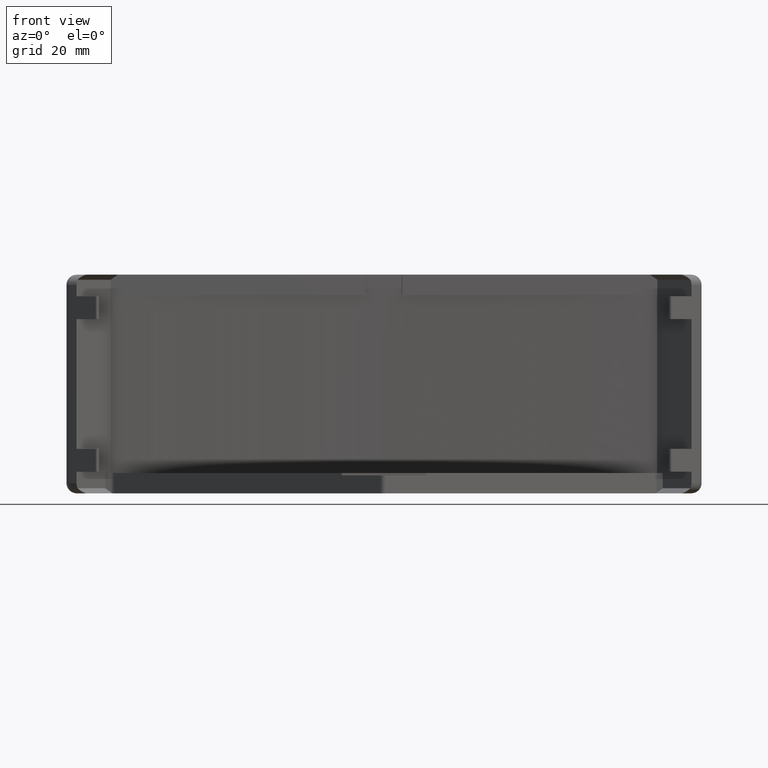
[diagram: clean part render]
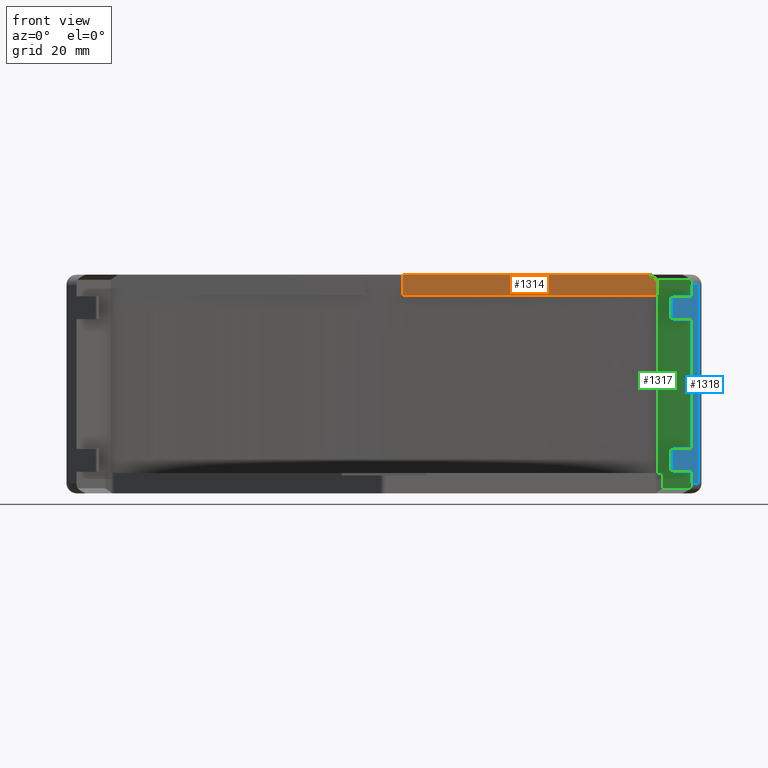
[diagram: same view with three faces highlighted in distinct colors, each labeled with its STEP entity id]
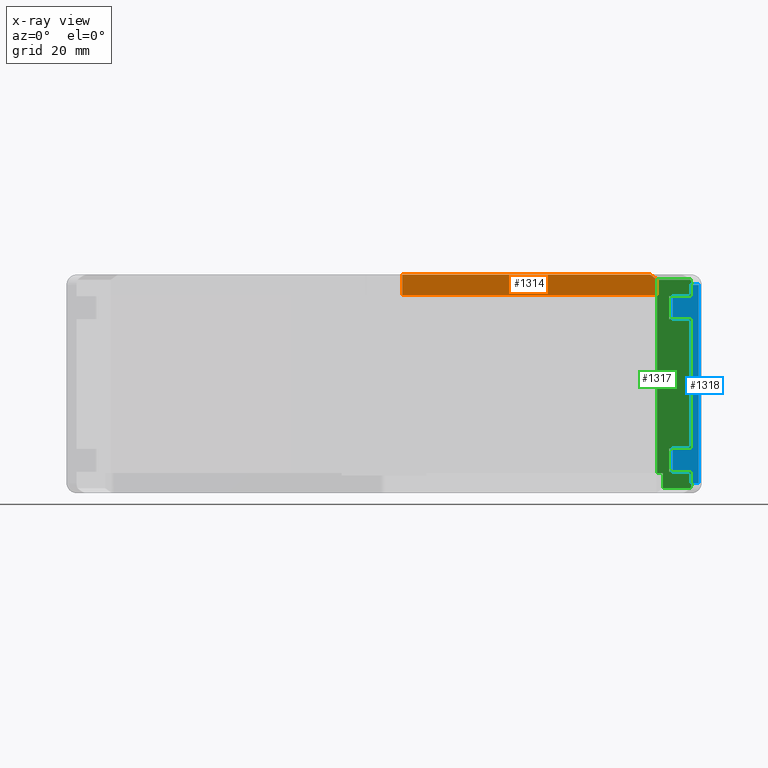
[diagram: x-ray of the same camera — body ghosted, the three highlighted faces saturated]
A machine part, front view with three faces highlighted in distinct colors.
The next image is the same camera in x-ray (body ghosted, the three faces saturated) — at least one of them is partly hidden behind the body in this view.
Their STEP definitions:

[orange] entity #1314 — the highlighted planar face has unit normal (0, -1, 0).
#52=PLANE('',#1437);
#95=LINE('',#1980,#234);
#166=LINE('',#2152,#305);
#167=LINE('',#2154,#306);
#168=LINE('',#2156,#307);
#169=LINE('',#2157,#308);
#234=VECTOR('',#1569,1000.);
#305=VECTOR('',#1726,1000.);
#306=VECTOR('',#1727,1000.);
#307=VECTOR('',#1728,1000.);
#308=VECTOR('',#1729,1000.);
#403=FACE_OUTER_BOUND('',#478,.T.);
#478=EDGE_LOOP('',(#1075,#1076,#1077,#1078,#1079));
#598=VERTEX_POINT('',#1964);
#605=VERTEX_POINT('',#1978);
#663=VERTEX_POINT('',#2151);
#664=VERTEX_POINT('',#2153);
#665=VERTEX_POINT('',#2155);
#731=EDGE_CURVE('',#605,#598,#95,.T.);
#817=EDGE_CURVE('',#605,#663,#166,.T.);
#818=EDGE_CURVE('',#664,#663,#167,.T.);
#819=EDGE_CURVE('',#665,#664,#168,.T.);
#820=EDGE_CURVE('',#598,#665,#169,.T.);
#1075=ORIENTED_EDGE('',*,*,#817,.T.);
#1076=ORIENTED_EDGE('',*,*,#818,.F.);
#1077=ORIENTED_EDGE('',*,*,#819,.F.);
#1078=ORIENTED_EDGE('',*,*,#820,.F.);
#1079=ORIENTED_EDGE('',*,*,#731,.F.);
#1314=ADVANCED_FACE('',(#403),#52,.T.);
#1437=AXIS2_PLACEMENT_3D('',#2150,#1724,#1725);
#1569=DIRECTION('',(1.,1.59349221399015E-14,6.56026351436684E-17));
#1724=DIRECTION('center_axis',(1.59349221399015E-14,-1.,0.));
#1725=DIRECTION('ref_axis',(-1.,-1.59349221399015E-14,0.));
#1726=DIRECTION('',(0.,0.,-1.));
#1727=DIRECTION('',(-1.,-1.59349221399015E-14,0.));
#1728=DIRECTION('',(-3.46944695195363E-14,-5.52993726712584E-28,-1.));
#1729=DIRECTION('',(0.816496580927719,1.3010809444579E-14,-0.577350269189636));
#1964=CARTESIAN_POINT('',(52.8251262658462,1.06066017178044,21.5));
#1978=CARTESIAN_POINT('',(4.08183490205625,1.06066017177966,21.5));
#1980=CARTESIAN_POINT('',(-0.0606601717808113,1.06066017177959,21.5));
#2150=CARTESIAN_POINT('Origin',(-0.0606601717808113,1.06066017177959,0.));
#2151=CARTESIAN_POINT('',(4.08183490205625,1.06066017177966,17.5));
#2152=CARTESIAN_POINT('',(4.08183490205625,1.06066017177966,0.));
#2153=CARTESIAN_POINT('',(54.2393398282193,1.06066017178044,17.5));
#2154=CARTESIAN_POINT('',(54.2393398282192,1.06066017178046,17.5));
#2155=CARTESIAN_POINT('',(54.2393398282193,1.06066017178046,20.5));
#2156=CARTESIAN_POINT('',(54.2393398282193,1.06066017178046,20.5));
#2157=CARTESIAN_POINT('',(52.8251262658462,1.06066017178044,21.5));

[blue] entity #1318 — the highlighted planar face has unit normal (-0.7071, 0.7071, 0).
#56=PLANE('',#1444);
#70=LINE('',#1915,#209);
#177=LINE('',#2177,#316);
#181=LINE('',#2185,#320);
#185=LINE('',#2193,#324);
#188=LINE('',#2199,#327);
#189=LINE('',#2200,#328);
#190=LINE('',#2202,#329);
#191=LINE('',#2204,#330);
#192=LINE('',#2205,#331);
#193=LINE('',#2207,#332);
#194=LINE('',#2209,#333);
#195=LINE('',#2210,#334);
#209=VECTOR('',#1524,1000.);
#316=VECTOR('',#1747,1000.);
#320=VECTOR('',#1751,1000.);
#324=VECTOR('',#1755,1000.);
#327=VECTOR('',#1762,1000.);
#328=VECTOR('',#1763,1000.);
#329=VECTOR('',#1764,1000.);
#330=VECTOR('',#1765,1000.);
#331=VECTOR('',#1766,1000.);
#332=VECTOR('',#1767,1000.);
#333=VECTOR('',#1768,1000.);
#334=VECTOR('',#1769,1000.);
#407=FACE_OUTER_BOUND('',#482,.T.);
#482=EDGE_LOOP('',(#1108,#1109,#1110,#1111,#1112,#1113,#1114,#1115,#1116,
#1117,#1118,#1119));
#571=VERTEX_POINT('',#1901);
#573=VERTEX_POINT('',#1907);
#671=VERTEX_POINT('',#2174);
#672=VERTEX_POINT('',#2176);
#675=VERTEX_POINT('',#2182);
#676=VERTEX_POINT('',#2184);
#679=VERTEX_POINT('',#2190);
#680=VERTEX_POINT('',#2192);
#682=VERTEX_POINT('',#2201);
#683=VERTEX_POINT('',#2203);
#684=VERTEX_POINT('',#2206);
#685=VERTEX_POINT('',#2208);
#699=EDGE_CURVE('',#573,#571,#70,.T.);
#830=EDGE_CURVE('',#672,#671,#177,.T.);
#834=EDGE_CURVE('',#676,#675,#181,.T.);
#838=EDGE_CURVE('',#680,#679,#185,.T.);
#842=EDGE_CURVE('',#671,#573,#188,.T.);
#843=EDGE_CURVE('',#571,#680,#189,.T.);
#844=EDGE_CURVE('',#682,#679,#190,.T.);
#845=EDGE_CURVE('',#683,#682,#191,.T.);
#846=EDGE_CURVE('',#683,#676,#192,.T.);
#847=EDGE_CURVE('',#684,#675,#193,.T.);
#848=EDGE_CURVE('',#685,#684,#194,.T.);
#849=EDGE_CURVE('',#685,#672,#195,.T.);
#1108=ORIENTED_EDGE('',*,*,#830,.T.);
#1109=ORIENTED_EDGE('',*,*,#842,.T.);
#1110=ORIENTED_EDGE('',*,*,#699,.T.);
#1111=ORIENTED_EDGE('',*,*,#843,.T.);
#1112=ORIENTED_EDGE('',*,*,#838,.T.);
#1113=ORIENTED_EDGE('',*,*,#844,.F.);
#1114=ORIENTED_EDGE('',*,*,#845,.F.);
#1115=ORIENTED_EDGE('',*,*,#846,.T.);
#1116=ORIENTED_EDGE('',*,*,#834,.T.);
#1117=ORIENTED_EDGE('',*,*,#847,.F.);
#1118=ORIENTED_EDGE('',*,*,#848,.F.);
#1119=ORIENTED_EDGE('',*,*,#849,.T.);
#1318=ADVANCED_FACE('',(#407),#56,.F.);
#1444=AXIS2_PLACEMENT_3D('',#2198,#1760,#1761);
#1524=DIRECTION('',(0.,0.,1.));
#1747=DIRECTION('',(0.,0.,-1.));
#1751=DIRECTION('',(0.,0.,-1.));
#1755=DIRECTION('',(0.,0.,-1.));
#1760=DIRECTION('center_axis',(-0.707106781186551,0.707106781186544,0.));
#1761=DIRECTION('ref_axis',(0.707106781186544,0.707106781186551,0.));
#1762=DIRECTION('',(0.707106781186544,0.707106781186551,0.));
#1763=DIRECTION('',(-0.707106781186544,-0.707106781186551,0.));
#1764=DIRECTION('',(0.707106781186537,0.707106781186558,0.));
#1765=DIRECTION('',(0.,0.,1.));
#1766=DIRECTION('',(0.707106781186537,0.707106781186558,0.));
#1767=DIRECTION('',(0.707106781186537,0.707106781186558,0.));
#1768=DIRECTION('',(0.,0.,1.));
#1769=DIRECTION('',(0.707106781186537,0.707106781186558,0.));
#1901=CARTESIAN_POINT('',(62.3606601717792,-4.23223304703269,19.5));
#1907=CARTESIAN_POINT('',(62.3606601717792,-4.23223304703269,-19.5));
#1915=CARTESIAN_POINT('',(62.3606601717792,-4.23223304703269,21.5));
#2174=CARTESIAN_POINT('',(60.9464466094061,-5.64644660940575,-19.5));
#2176=CARTESIAN_POINT('',(60.9464466094061,-5.64644660940574,-17.25));
#2177=CARTESIAN_POINT('',(60.9464466094061,-5.64644660940575,21.5));
#2182=CARTESIAN_POINT('',(60.9464466094061,-5.64644660940575,-12.75));
#2184=CARTESIAN_POINT('',(60.9464466094061,-5.64644660940574,12.75));
#2185=CARTESIAN_POINT('',(60.9464466094061,-5.64644660940575,21.5));
#2190=CARTESIAN_POINT('',(60.9464466094061,-5.64644660940575,17.25));
#2192=CARTESIAN_POINT('',(60.9464466094061,-5.64644660940575,19.5));
#2193=CARTESIAN_POINT('',(60.9464466094061,-5.64644660940575,21.5));
#2198=CARTESIAN_POINT('Origin',(60.9464466094061,-5.64644660940577,21.5));
#2199=CARTESIAN_POINT('',(62.3606601717792,-4.23223304703267,-19.5));
#2200=CARTESIAN_POINT('',(60.9464466094061,-5.64644660940577,19.5));
#2201=CARTESIAN_POINT('',(57.2452272785242,-9.34766594028775,17.25));
#2202=CARTESIAN_POINT('',(60.9464466094061,-5.64644660940574,17.25));
#2203=CARTESIAN_POINT('',(57.2452272785242,-9.34766594028775,12.75));
#2204=CARTESIAN_POINT('',(57.2452272785242,-9.34766594028773,17.25));
#2205=CARTESIAN_POINT('',(60.9464466094061,-5.64644660940574,12.75));
#2206=CARTESIAN_POINT('',(57.2452272785242,-9.34766594028775,-12.75));
#2207=CARTESIAN_POINT('',(60.9464466094061,-5.64644660940574,-12.75));
#2208=CARTESIAN_POINT('',(57.2452272785242,-9.34766594028775,-17.25));
#2209=CARTESIAN_POINT('',(57.2452272785242,-9.34766594028773,-12.75));
#2210=CARTESIAN_POINT('',(60.9464466094061,-5.64644660940574,-17.25));

[green] entity #1317 — the highlighted planar face has unit normal (-0.7071, -0.7071, 0).
#55=PLANE('',#1441);
#99=LINE('',#1992,#238);
#168=LINE('',#2156,#307);
#170=LINE('',#2161,#309);
#175=LINE('',#2170,#314);
#176=LINE('',#2173,#315);
#177=LINE('',#2177,#316);
#178=LINE('',#2179,#317);
#179=LINE('',#2181,#318);
#180=LINE('',#2183,#319);
#181=LINE('',#2185,#320);
#182=LINE('',#2187,#321);
#183=LINE('',#2189,#322);
#184=LINE('',#2191,#323);
#185=LINE('',#2193,#324);
#186=LINE('',#2196,#325);
#187=LINE('',#2197,#326);
#238=VECTOR('',#1577,1000.);
#307=VECTOR('',#1728,1000.);
#309=VECTOR('',#1734,1000.);
#314=VECTOR('',#1741,1000.);
#315=VECTOR('',#1744,1000.);
#316=VECTOR('',#1747,1000.);
#317=VECTOR('',#1748,1000.);
#318=VECTOR('',#1749,1000.);
#319=VECTOR('',#1750,1000.);
#320=VECTOR('',#1751,1000.);
#321=VECTOR('',#1752,1000.);
#322=VECTOR('',#1753,1000.);
#323=VECTOR('',#1754,1000.);
#324=VECTOR('',#1755,1000.);
#325=VECTOR('',#1758,1000.);
#326=VECTOR('',#1759,1000.);
#406=FACE_OUTER_BOUND('',#481,.T.);
#481=EDGE_LOOP('',(#1090,#1091,#1092,#1093,#1094,#1095,#1096,#1097,#1098,
#1099,#1100,#1101,#1102,#1103,#1104,#1105,#1106,#1107));
#546=CIRCLE('',#1442,2.);
#547=CIRCLE('',#1443,2.);
#610=VERTEX_POINT('',#1989);
#611=VERTEX_POINT('',#1991);
#664=VERTEX_POINT('',#2153);
#665=VERTEX_POINT('',#2155);
#666=VERTEX_POINT('',#2159);
#669=VERTEX_POINT('',#2168);
#670=VERTEX_POINT('',#2172);
#671=VERTEX_POINT('',#2174);
#672=VERTEX_POINT('',#2176);
#673=VERTEX_POINT('',#2178);
#674=VERTEX_POINT('',#2180);
#675=VERTEX_POINT('',#2182);
#676=VERTEX_POINT('',#2184);
#677=VERTEX_POINT('',#2186);
#678=VERTEX_POINT('',#2188);
#679=VERTEX_POINT('',#2190);
#680=VERTEX_POINT('',#2192);
#681=VERTEX_POINT('',#2194);
#736=EDGE_CURVE('',#611,#610,#99,.T.);
#819=EDGE_CURVE('',#665,#664,#168,.T.);
#822=EDGE_CURVE('',#666,#664,#170,.T.);
#827=EDGE_CURVE('',#669,#610,#175,.T.);
#828=EDGE_CURVE('',#669,#670,#176,.T.);
#829=EDGE_CURVE('',#670,#671,#546,.T.);
#830=EDGE_CURVE('',#672,#671,#177,.T.);
#831=EDGE_CURVE('',#672,#673,#178,.T.);
#832=EDGE_CURVE('',#674,#673,#179,.T.);
#833=EDGE_CURVE('',#675,#674,#180,.T.);
#834=EDGE_CURVE('',#676,#675,#181,.T.);
#835=EDGE_CURVE('',#676,#677,#182,.T.);
#836=EDGE_CURVE('',#678,#677,#183,.T.);
#837=EDGE_CURVE('',#679,#678,#184,.T.);
#838=EDGE_CURVE('',#680,#679,#185,.T.);
#839=EDGE_CURVE('',#680,#681,#547,.T.);
#840=EDGE_CURVE('',#681,#665,#186,.T.);
#841=EDGE_CURVE('',#611,#666,#187,.T.);
#1090=ORIENTED_EDGE('',*,*,#828,.T.);
#1091=ORIENTED_EDGE('',*,*,#829,.T.);
#1092=ORIENTED_EDGE('',*,*,#830,.F.);
#1093=ORIENTED_EDGE('',*,*,#831,.T.);
#1094=ORIENTED_EDGE('',*,*,#832,.F.);
#1095=ORIENTED_EDGE('',*,*,#833,.F.);
#1096=ORIENTED_EDGE('',*,*,#834,.F.);
#1097=ORIENTED_EDGE('',*,*,#835,.T.);
#1098=ORIENTED_EDGE('',*,*,#836,.F.);
#1099=ORIENTED_EDGE('',*,*,#837,.F.);
#1100=ORIENTED_EDGE('',*,*,#838,.F.);
#1101=ORIENTED_EDGE('',*,*,#839,.T.);
#1102=ORIENTED_EDGE('',*,*,#840,.T.);
#1103=ORIENTED_EDGE('',*,*,#819,.T.);
#1104=ORIENTED_EDGE('',*,*,#822,.F.);
#1105=ORIENTED_EDGE('',*,*,#841,.F.);
#1106=ORIENTED_EDGE('',*,*,#736,.T.);
#1107=ORIENTED_EDGE('',*,*,#827,.F.);
#1317=ADVANCED_FACE('',(#406),#55,.T.);
#1441=AXIS2_PLACEMENT_3D('',#2171,#1742,#1743);
#1442=AXIS2_PLACEMENT_3D('',#2175,#1745,#1746);
#1443=AXIS2_PLACEMENT_3D('',#2195,#1756,#1757);
#1577=DIRECTION('',(0.707106781186562,-0.707106781186533,0.));
#1728=DIRECTION('',(-3.46944695195363E-14,-5.52993726712584E-28,-1.));
#1734=DIRECTION('',(0.707106781186562,-0.707106781186533,0.));
#1741=DIRECTION('',(0.,0.,1.));
#1742=DIRECTION('center_axis',(-0.707106781186533,-0.707106781186563,0.));
#1743=DIRECTION('ref_axis',(-0.707106781186563,0.707106781186533,0.));
#1744=DIRECTION('',(0.707106781186562,-0.707106781186533,1.09909275772886E-14));
#1745=DIRECTION('center_axis',(-0.707106781186533,-0.707106781186562,0.));
#1746=DIRECTION('ref_axis',(0.707106781186562,-0.707106781186533,0.));
#1747=DIRECTION('',(0.,0.,-1.));
#1748=DIRECTION('',(-0.707106781186559,0.707106781186536,0.));
#1749=DIRECTION('',(0.,0.,-1.));
#1750=DIRECTION('',(-0.707106781186559,0.707106781186536,0.));
#1751=DIRECTION('',(0.,0.,-1.));
#1752=DIRECTION('',(-0.707106781186559,0.707106781186536,0.));
#1753=DIRECTION('',(0.,0.,-1.));
#1754=DIRECTION('',(-0.707106781186559,0.707106781186536,0.));
#1755=DIRECTION('',(0.,0.,-1.));
#1756=DIRECTION('center_axis',(-0.707106781186533,-0.707106781186562,0.));
#1757=DIRECTION('ref_axis',(0.707106781186562,-0.707106781186533,0.));
#1758=DIRECTION('',(-0.707106781186562,0.707106781186533,1.11526989270688E-14));
#1759=DIRECTION('',(0.,0.,1.));
#1989=CARTESIAN_POINT('',(55.2999999999992,8.79993070830996E-13,-17.5));
#1991=CARTESIAN_POINT('',(54.2057977667628,1.09420223323684,-17.5));
#1992=CARTESIAN_POINT('',(55.2999999999992,8.79944576085545E-13,-17.5));
#2153=CARTESIAN_POINT('',(54.2393398282193,1.06066017178044,17.5));
#2155=CARTESIAN_POINT('',(54.2393398282193,1.06066017178046,20.5));
#2156=CARTESIAN_POINT('',(54.2393398282193,1.06066017178046,20.5));
#2159=CARTESIAN_POINT('',(54.2057977667628,1.09420223323684,17.5));
#2161=CARTESIAN_POINT('',(808.692384374742,-753.392384374711,17.5));
#2168=CARTESIAN_POINT('',(55.2999999999992,8.78426693044065E-13,-20.5));
#2170=CARTESIAN_POINT('',(55.2999999999992,8.79944576085545E-13,21.5));
#2171=CARTESIAN_POINT('Origin',(55.2999999999992,8.79944576085545E-13,21.5));
#2172=CARTESIAN_POINT('',(60.7569779184247,-5.45697791842429,-20.4999999999999));
#2173=CARTESIAN_POINT('',(54.3083754219483,0.991624578051763,-20.5));
#2174=CARTESIAN_POINT('',(60.9464466094061,-5.64644660940575,-19.5));
#2175=CARTESIAN_POINT('Origin',(59.532233047033,-4.23223304703268,-19.5));
#2176=CARTESIAN_POINT('',(60.9464466094061,-5.64644660940574,-17.25));
#2177=CARTESIAN_POINT('',(60.9464466094061,-5.64644660940575,21.5));
#2178=CARTESIAN_POINT('',(56.5623845660494,-1.26238456604921,-17.25));
#2179=CARTESIAN_POINT('',(56.5623845660494,-1.26238456604916,-17.25));
#2180=CARTESIAN_POINT('',(56.5623845660494,-1.26238456604921,-12.75));
#2181=CARTESIAN_POINT('',(56.5623845660494,-1.26238456604916,-12.75));
#2182=CARTESIAN_POINT('',(60.9464466094061,-5.64644660940575,-12.75));
#2183=CARTESIAN_POINT('',(56.5623845660494,-1.26238456604916,-12.75));
#2184=CARTESIAN_POINT('',(60.9464466094061,-5.64644660940574,12.75));
#2185=CARTESIAN_POINT('',(60.9464466094061,-5.64644660940575,21.5));
#2186=CARTESIAN_POINT('',(56.5623845660494,-1.26238456604921,12.75));
#2187=CARTESIAN_POINT('',(56.5623845660494,-1.26238456604916,12.75));
#2188=CARTESIAN_POINT('',(56.5623845660494,-1.26238456604921,17.25));
#2189=CARTESIAN_POINT('',(56.5623845660494,-1.26238456604916,17.25));
#2190=CARTESIAN_POINT('',(60.9464466094061,-5.64644660940575,17.25));
#2191=CARTESIAN_POINT('',(56.5623845660494,-1.26238456604916,17.25));
#2192=CARTESIAN_POINT('',(60.9464466094061,-5.64644660940575,19.5));
#2193=CARTESIAN_POINT('',(60.9464466094061,-5.64644660940575,21.5));
#2194=CARTESIAN_POINT('',(60.7569779184246,-5.45697791842425,20.5));
#2195=CARTESIAN_POINT('Origin',(59.532233047033,-4.23223304703269,19.5));
#2196=CARTESIAN_POINT('',(54.3083754219483,0.991624578051785,20.5000000000001));
#2197=CARTESIAN_POINT('',(54.2057977667628,1.09420223323684,-126.118414645032));